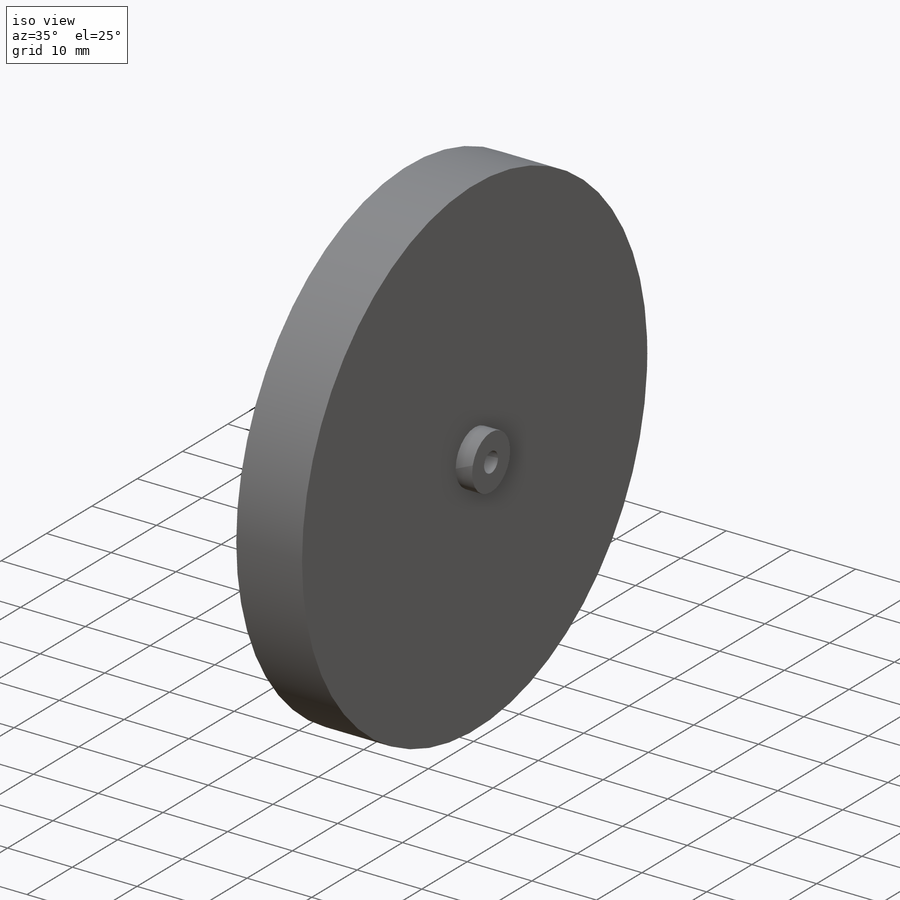
[diagram: iso view]
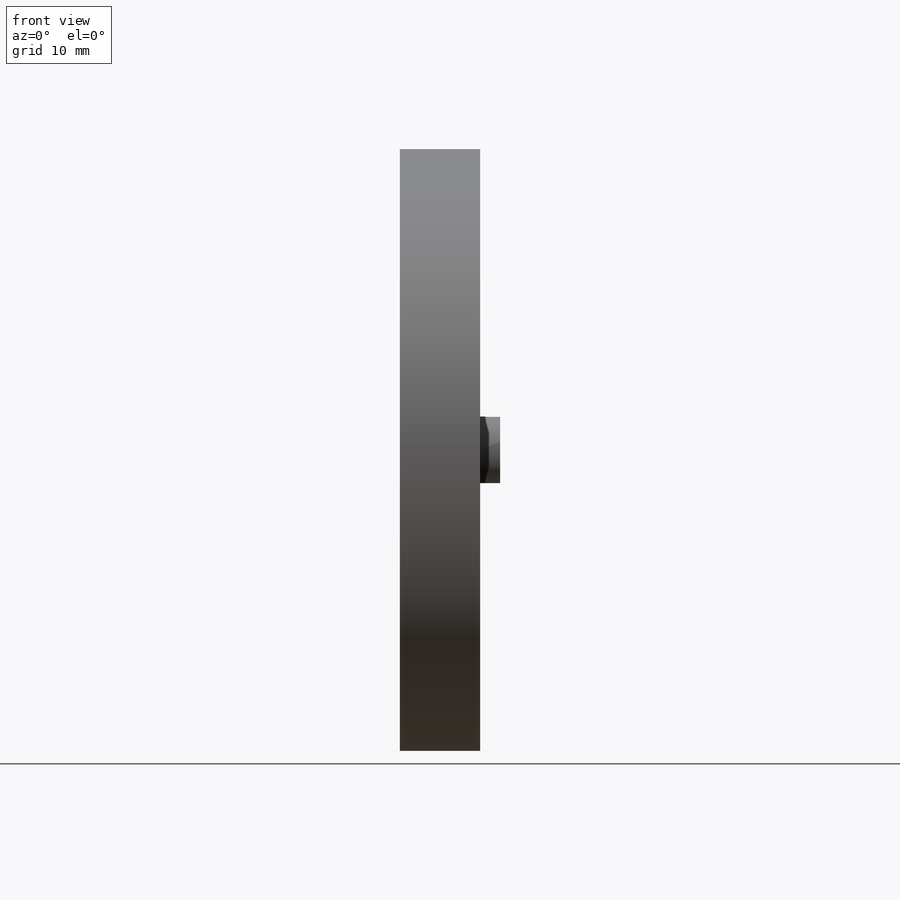
[diagram: front view]
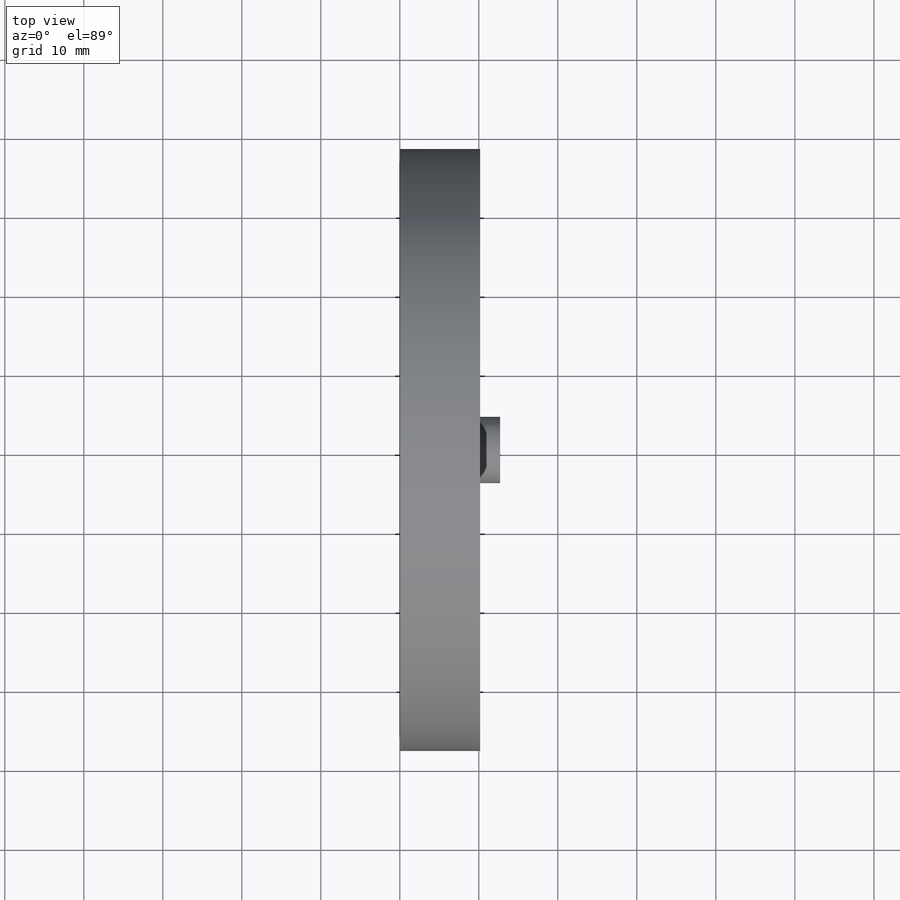
[diagram: top view]
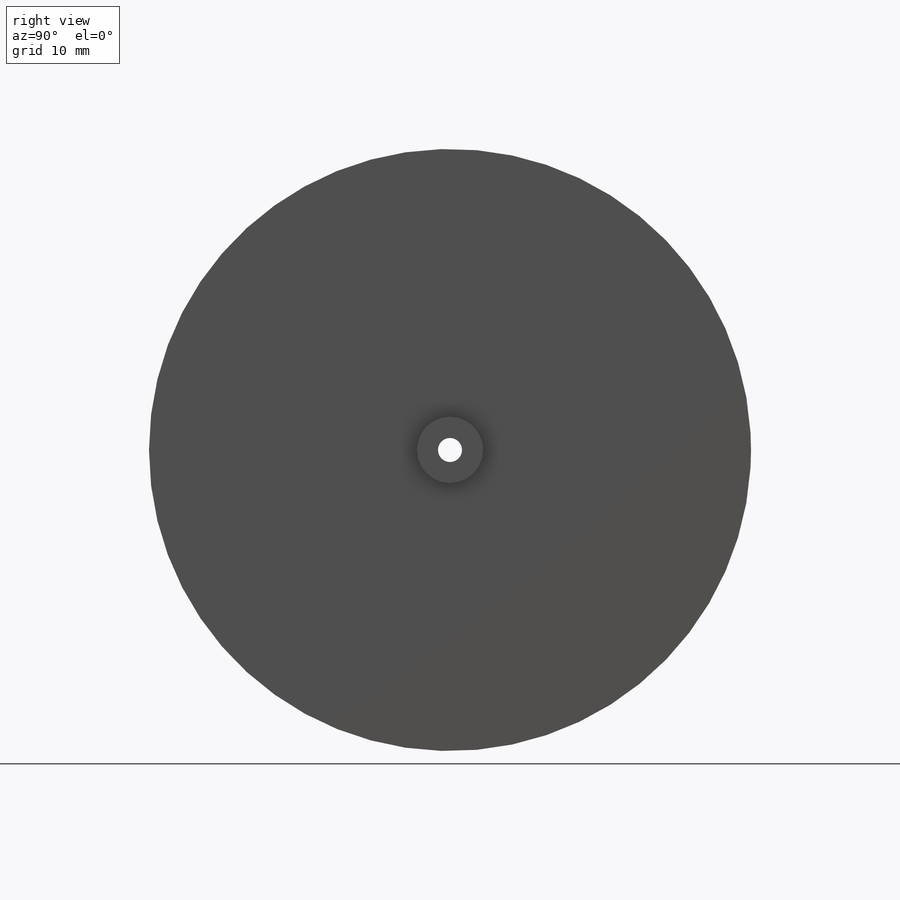
[diagram: right view]
SOLIDWORKS PART (.sldprt)
format: sldprt  version: not decoded by parser v0  size: 335,360 bytes
history: native  units: mm
features: sketch x7, cut_extrude x4, extrude x3, material x1 (+11 scaffold rows collapsed)
feature tree (26):
  scaffold x11  (default folders/planes/origin — collapsed)
  material  "Material <not specified>"
  sketch  "Sketch1"  dims[D1=76.2mm]
  extrude  "Boss-Extrude1"  Depth=10.16mm
  sketch  "Sketch3"  dims[D1=8.382mm]
  extrude  "Boss-Extrude2"  Depth=2.54mm
  sketch  "Sketch4"  dims[D1=3.048mm]
  cut_extrude  "Cut-Extrude1"  [1 undecoded]
  sketch  "Sketch5"  dims[D1=45.72mm]
  cut_extrude  "Cut-Extrude2"  Depth=3.81mm
  sketch  "Sketch6"  dims[D1=25.4mm]
  cut_extrude  "Cut-Extrude3"  Depth=2.54mm
  sketch  "Sketch7"  dims[D1=13.462mm]
  extrude  "Boss-Extrude3"  Depth=3.81mm
  sketch  "Sketch9"  dims[D1=7.62mm]
  cut_extrude  "Cut-Extrude4"  Depth=3.81mm
decode coverage: 13 of 14 modeling features carry decoded parameters
note: 1 parameter value undecoded
note: suppression state not decoded; provenance and decode notes live in map.json
